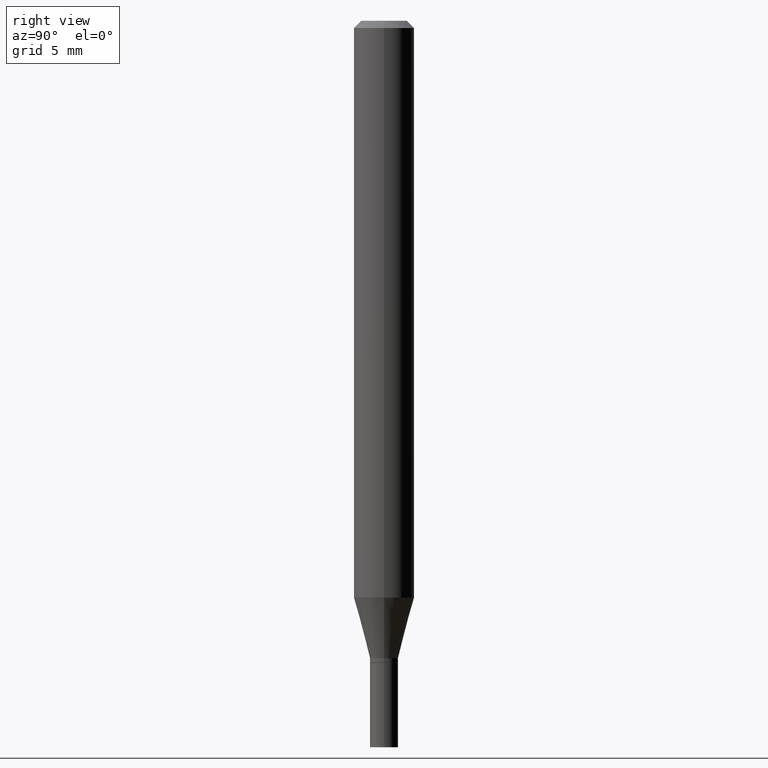
[diagram: clean part render]
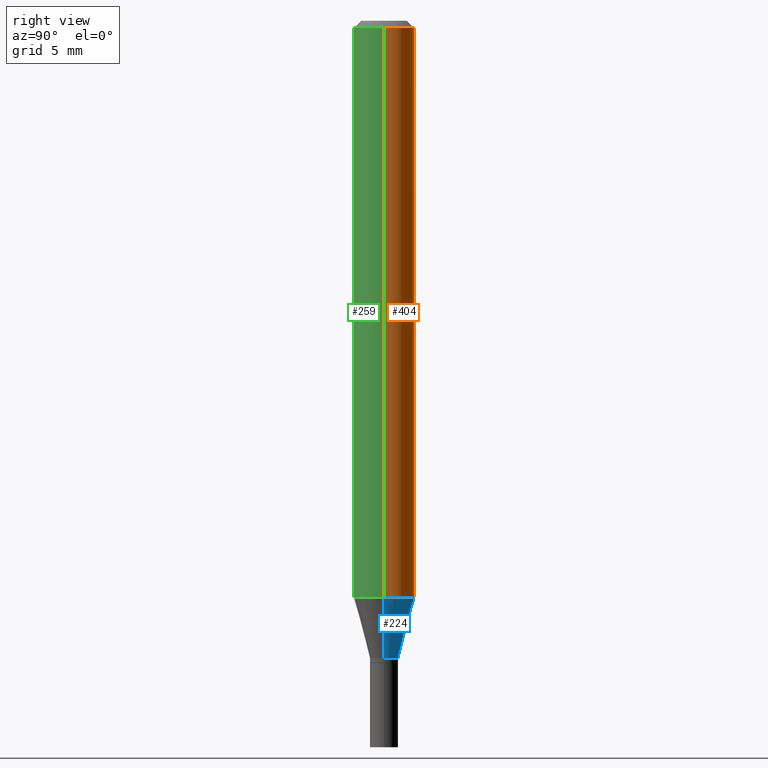
[diagram: same view with three faces highlighted in distinct colors, each labeled with its STEP entity id]
A machine part, right view with three faces highlighted in distinct colors.
Their STEP definitions:

[orange] entity #404 — the highlighted cylindrical surface (edge-blend (fillet) strip) has radius 1.5875 mm, axis along (-0, 0, 1).
#3 = CARTESIAN_POINT ( 'NONE',  ( -0.06250000000000000000, 4.440892098500626162E-16, -3.074334431409316114E-30 ) ) ;
#18 = AXIS2_PLACEMENT_3D ( 'NONE', #96, #382, #23 ) ;
#23 = DIRECTION ( 'NONE',  ( 1.000000000000000000, -6.982962677686266711E-15, 4.876176775795935793E-29 ) ) ;
#24 = DIRECTION ( 'NONE',  ( -2.445468806185136877E-29, 3.491481338843145188E-15, 1.000000000000000000 ) ) ;
#52 = CARTESIAN_POINT ( 'NONE',  ( -0.06250000000000000000, -3.714182309434436740E-15, -1.190976297946442664 ) ) ;
#81 = ORIENTED_EDGE ( 'NONE', *, *, #157, .T. ) ;
#91 = CARTESIAN_POINT ( 'NONE',  ( 0.06250000000000000000, -4.364351673553916694E-16, 3.047610484872459871E-30 ) ) ;
#96 = CARTESIAN_POINT ( 'NONE',  ( 0.000000000000000000, 0.000000000000000000, 0.000000000000000000 ) ) ;
#97 = VECTOR ( 'NONE', #334, 39.37007874015748143 ) ;
#105 = CARTESIAN_POINT ( 'NONE',  ( 3.668203209277705088E-31, -5.237222008264718399E-17, -0.01499999999999999944 ) ) ;
#118 = AXIS2_PLACEMENT_3D ( 'NONE', #105, #397, #297 ) ;
#135 = CIRCLE ( 'NONE', #118, 0.06250000000000000000 ) ;
#157 = EDGE_CURVE ( 'NONE', #366, #189, #314, .T. ) ;
#168 = LINE ( 'NONE', #91, #97 ) ;
#169 = DIRECTION ( 'NONE',  ( 1.000000000000000000, -6.982962677686262766E-15, 0.000000000000000000 ) ) ;
#185 = CIRCLE ( 'NONE', #192, 0.06250000000000000000 ) ;
#189 = VERTEX_POINT ( 'NONE', #464 ) ;
#192 = AXIS2_PLACEMENT_3D ( 'NONE', #338, #307, #169 ) ;
#207 = EDGE_LOOP ( 'NONE', ( #453, #81, #383, #463 ) ) ;
#210 = EDGE_CURVE ( 'NONE', #238, #189, #135, .T. ) ;
#226 = VECTOR ( 'NONE', #24, 39.37007874015748143 ) ;
#238 = VERTEX_POINT ( 'NONE', #322 ) ;
#297 = DIRECTION ( 'NONE',  ( 1.000000000000000000, -6.982962677686266711E-15, 0.000000000000000000 ) ) ;
#300 = EDGE_CURVE ( 'NONE', #332, #238, #168, .T. ) ;
#305 = FACE_OUTER_BOUND ( 'NONE', #207, .T. ) ;
#307 = DIRECTION ( 'NONE',  ( -2.445468806185136597E-29, 3.491481338843145583E-15, 1.000000000000000000 ) ) ;
#314 = LINE ( 'NONE', #3, #226 ) ;
#322 = CARTESIAN_POINT ( 'NONE',  ( 0.06250000000000000000, -4.888073874380388472E-16, -0.01499999999999999944 ) ) ;
#332 = VERTEX_POINT ( 'NONE', #448 ) ;
#334 = DIRECTION ( 'NONE',  ( -2.445468806185136877E-29, 3.491481338843145188E-15, 1.000000000000000000 ) ) ;
#335 = EDGE_CURVE ( 'NONE', #332, #366, #185, .T. ) ;
#338 = CARTESIAN_POINT ( 'NONE',  ( 2.912495385533880761E-29, -4.158271519284499356E-15, -1.190976297946442664 ) ) ;
#353 = CYLINDRICAL_SURFACE ( 'NONE', #18, 0.06250000000000000000 ) ;
#366 = VERTEX_POINT ( 'NONE', #52 ) ;
#382 = DIRECTION ( 'NONE',  ( -2.445468806185136597E-29, 3.491481338843145583E-15, 1.000000000000000000 ) ) ;
#383 = ORIENTED_EDGE ( 'NONE', *, *, #210, .F. ) ;
#397 = DIRECTION ( 'NONE',  ( -2.445468806185136597E-29, 3.491481338843145583E-15, 1.000000000000000000 ) ) ;
#404 = ADVANCED_FACE ( 'NONE', ( #305 ), #353, .T. ) ;
#448 = CARTESIAN_POINT ( 'NONE',  ( 0.06250000000000000000, -4.594706686639889448E-15, -1.190976297946442664 ) ) ;
#453 = ORIENTED_EDGE ( 'NONE', *, *, #335, .T. ) ;
#463 = ORIENTED_EDGE ( 'NONE', *, *, #300, .F. ) ;
#464 = CARTESIAN_POINT ( 'NONE',  ( -0.06250000000000000000, -1.661232659833510602E-15, -0.01499999999999999944 ) ) ;

[blue] entity #224 — the highlighted conical surface has half-angle 15 deg.
#2 = CARTESIAN_POINT ( 'NONE',  ( 0.02899999999999992167, -4.797295359570480345E-15, -1.316000000000000059 ) ) ;
#7 = VERTEX_POINT ( 'NONE', #71 ) ;
#39 = DIRECTION ( 'NONE',  ( 0.2588190451025213501, 1.565188264969621968E-15, 0.9659258262890682012 ) ) ;
#43 = ORIENTED_EDGE ( 'NONE', *, *, #76, .T. ) ;
#52 = CARTESIAN_POINT ( 'NONE',  ( -0.06250000000000000000, -3.714182309434436740E-15, -1.190976297946442664 ) ) ;
#53 = DIRECTION ( 'NONE',  ( -2.445468806185136597E-29, 3.491481338843145583E-15, 1.000000000000000000 ) ) ;
#55 = ORIENTED_EDGE ( 'NONE', *, *, #465, .F. ) ;
#71 = CARTESIAN_POINT ( 'NONE',  ( -0.02899999999999992167, -4.051457178990793956E-15, -1.316000000000000059 ) ) ;
#76 = EDGE_CURVE ( 'NONE', #7, #366, #175, .T. ) ;
#141 = DIRECTION ( 'NONE',  ( -0.2588190451025213501, 5.211531920934551042E-15, 0.9659258262890682012 ) ) ;
#156 = FACE_OUTER_BOUND ( 'NONE', #384, .T. ) ;
#169 = DIRECTION ( 'NONE',  ( 1.000000000000000000, -6.982962677686262766E-15, 0.000000000000000000 ) ) ;
#175 = LINE ( 'NONE', #251, #341 ) ;
#185 = CIRCLE ( 'NONE', #192, 0.06250000000000000000 ) ;
#191 = DIRECTION ( 'NONE',  ( 1.000000000000000000, -6.982962677686251722E-15, 0.000000000000000000 ) ) ;
#192 = AXIS2_PLACEMENT_3D ( 'NONE', #338, #307, #169 ) ;
#213 = DIRECTION ( 'NONE',  ( -2.445468806185136597E-29, 3.491481338843145583E-15, 1.000000000000000000 ) ) ;
#224 = ADVANCED_FACE ( 'NONE', ( #156 ), #398, .T. ) ;
#251 = CARTESIAN_POINT ( 'NONE',  ( -0.02899999999999992167, -4.388732048547151961E-15, -1.316000000000000059 ) ) ;
#255 = LINE ( 'NONE', #365, #331 ) ;
#304 = CARTESIAN_POINT ( 'NONE',  ( 3.218236948939640273E-29, -4.594789441917579620E-15, -1.316000000000000059 ) ) ;
#307 = DIRECTION ( 'NONE',  ( -2.445468806185136597E-29, 3.491481338843145583E-15, 1.000000000000000000 ) ) ;
#311 = ORIENTED_EDGE ( 'NONE', *, *, #389, .T. ) ;
#331 = VECTOR ( 'NONE', #39, 39.37007874015747433 ) ;
#332 = VERTEX_POINT ( 'NONE', #448 ) ;
#335 = EDGE_CURVE ( 'NONE', #332, #366, #185, .T. ) ;
#338 = CARTESIAN_POINT ( 'NONE',  ( 2.912495385533880761E-29, -4.158271519284499356E-15, -1.190976297946442664 ) ) ;
#341 = VECTOR ( 'NONE', #141, 39.37007874015747433 ) ;
#362 = CARTESIAN_POINT ( 'NONE',  ( 3.218236948939640273E-29, -4.594789441917579620E-15, -1.316000000000000059 ) ) ;
#365 = CARTESIAN_POINT ( 'NONE',  ( 0.02899999999999992167, -4.797295359570480345E-15, -1.316000000000000059 ) ) ;
#366 = VERTEX_POINT ( 'NONE', #52 ) ;
#368 = AXIS2_PLACEMENT_3D ( 'NONE', #362, #213, #191 ) ;
#384 = EDGE_LOOP ( 'NONE', ( #311, #43, #441, #55 ) ) ;
#389 = EDGE_CURVE ( 'NONE', #466, #7, #450, .T. ) ;
#398 = CONICAL_SURFACE ( 'NONE', #368, 0.02899999999999992167, 0.2617993877991500740 ) ;
#411 = DIRECTION ( 'NONE',  ( 1.000000000000000000, -6.982962677686251722E-15, 0.000000000000000000 ) ) ;
#423 = AXIS2_PLACEMENT_3D ( 'NONE', #304, #53, #411 ) ;
#441 = ORIENTED_EDGE ( 'NONE', *, *, #335, .F. ) ;
#448 = CARTESIAN_POINT ( 'NONE',  ( 0.06250000000000000000, -4.594706686639889448E-15, -1.190976297946442664 ) ) ;
#450 = CIRCLE ( 'NONE', #423, 0.02899999999999992167 ) ;
#465 = EDGE_CURVE ( 'NONE', #466, #332, #255, .T. ) ;
#466 = VERTEX_POINT ( 'NONE', #2 ) ;

[green] entity #259 — the highlighted cylindrical surface (edge-blend (fillet) strip) has radius 1.5875 mm, axis along (-0, 0, 1).
#3 = CARTESIAN_POINT ( 'NONE',  ( -0.06250000000000000000, 4.440892098500626162E-16, -3.074334431409316114E-30 ) ) ;
#5 = DIRECTION ( 'NONE',  ( -2.445468806185136597E-29, 3.491481338843145583E-15, 1.000000000000000000 ) ) ;
#24 = DIRECTION ( 'NONE',  ( -2.445468806185136877E-29, 3.491481338843145188E-15, 1.000000000000000000 ) ) ;
#37 = DIRECTION ( 'NONE',  ( -2.445468806185136597E-29, 3.491481338843145583E-15, 1.000000000000000000 ) ) ;
#52 = CARTESIAN_POINT ( 'NONE',  ( -0.06250000000000000000, -3.714182309434436740E-15, -1.190976297946442664 ) ) ;
#73 = FACE_OUTER_BOUND ( 'NONE', #241, .T. ) ;
#91 = CARTESIAN_POINT ( 'NONE',  ( 0.06250000000000000000, -4.364351673553916694E-16, 3.047610484872459871E-30 ) ) ;
#97 = VECTOR ( 'NONE', #334, 39.37007874015748143 ) ;
#101 = AXIS2_PLACEMENT_3D ( 'NONE', #262, #37, #188 ) ;
#106 = DIRECTION ( 'NONE',  ( 1.000000000000000000, -6.982962677686262766E-15, 0.000000000000000000 ) ) ;
#117 = ORIENTED_EDGE ( 'NONE', *, *, #171, .F. ) ;
#137 = DIRECTION ( 'NONE',  ( 1.000000000000000000, -6.982962677686266711E-15, 0.000000000000000000 ) ) ;
#142 = ORIENTED_EDGE ( 'NONE', *, *, #300, .T. ) ;
#148 = CARTESIAN_POINT ( 'NONE',  ( 2.912495385533880761E-29, -4.158271519284499356E-15, -1.190976297946442664 ) ) ;
#154 = AXIS2_PLACEMENT_3D ( 'NONE', #148, #5, #106 ) ;
#157 = EDGE_CURVE ( 'NONE', #366, #189, #314, .T. ) ;
#168 = LINE ( 'NONE', #91, #97 ) ;
#171 = EDGE_CURVE ( 'NONE', #189, #238, #303, .T. ) ;
#183 = ORIENTED_EDGE ( 'NONE', *, *, #157, .F. ) ;
#188 = DIRECTION ( 'NONE',  ( 1.000000000000000000, -6.982962677686266711E-15, 4.876176775795935793E-29 ) ) ;
#189 = VERTEX_POINT ( 'NONE', #464 ) ;
#226 = VECTOR ( 'NONE', #24, 39.37007874015748143 ) ;
#238 = VERTEX_POINT ( 'NONE', #322 ) ;
#241 = EDGE_LOOP ( 'NONE', ( #183, #369, #142, #117 ) ) ;
#259 = ADVANCED_FACE ( 'NONE', ( #73 ), #435, .T. ) ;
#262 = CARTESIAN_POINT ( 'NONE',  ( 0.000000000000000000, 0.000000000000000000, 0.000000000000000000 ) ) ;
#266 = CIRCLE ( 'NONE', #154, 0.06250000000000000000 ) ;
#285 = CARTESIAN_POINT ( 'NONE',  ( 3.668203209277705088E-31, -5.237222008264718399E-17, -0.01499999999999999944 ) ) ;
#300 = EDGE_CURVE ( 'NONE', #332, #238, #168, .T. ) ;
#303 = CIRCLE ( 'NONE', #376, 0.06250000000000000000 ) ;
#314 = LINE ( 'NONE', #3, #226 ) ;
#322 = CARTESIAN_POINT ( 'NONE',  ( 0.06250000000000000000, -4.888073874380388472E-16, -0.01499999999999999944 ) ) ;
#332 = VERTEX_POINT ( 'NONE', #448 ) ;
#334 = DIRECTION ( 'NONE',  ( -2.445468806185136877E-29, 3.491481338843145188E-15, 1.000000000000000000 ) ) ;
#366 = VERTEX_POINT ( 'NONE', #52 ) ;
#369 = ORIENTED_EDGE ( 'NONE', *, *, #432, .T. ) ;
#376 = AXIS2_PLACEMENT_3D ( 'NONE', #285, #458, #137 ) ;
#432 = EDGE_CURVE ( 'NONE', #366, #332, #266, .T. ) ;
#435 = CYLINDRICAL_SURFACE ( 'NONE', #101, 0.06250000000000000000 ) ;
#448 = CARTESIAN_POINT ( 'NONE',  ( 0.06250000000000000000, -4.594706686639889448E-15, -1.190976297946442664 ) ) ;
#458 = DIRECTION ( 'NONE',  ( -2.445468806185136597E-29, 3.491481338843145583E-15, 1.000000000000000000 ) ) ;
#464 = CARTESIAN_POINT ( 'NONE',  ( -0.06250000000000000000, -1.661232659833510602E-15, -0.01499999999999999944 ) ) ;